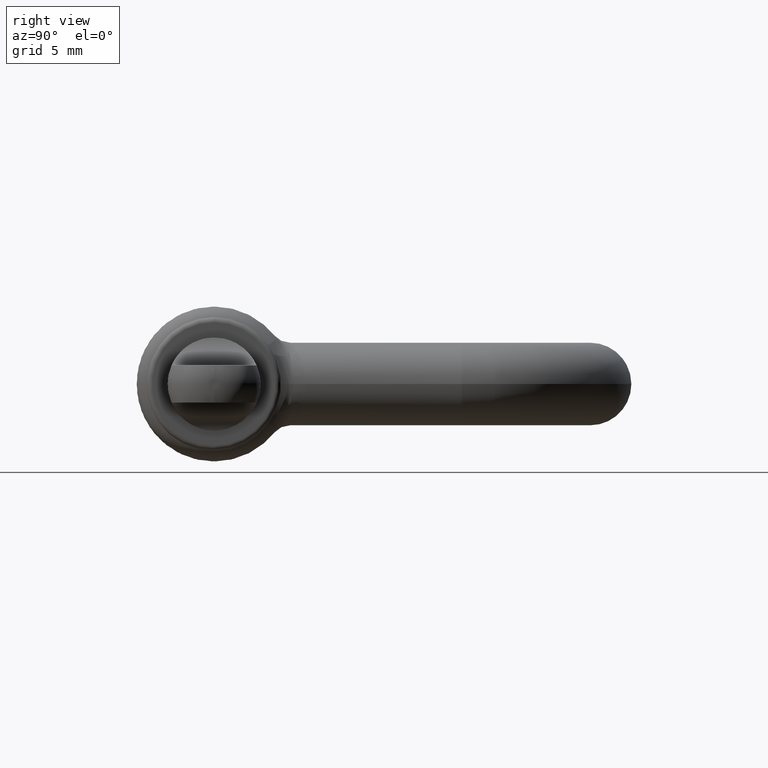
[diagram: clean part render]
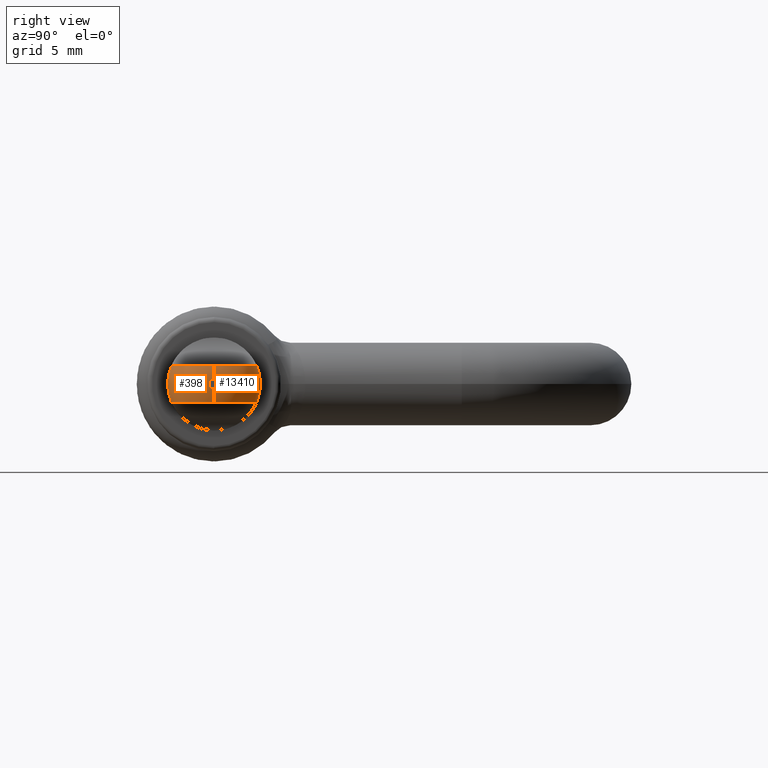
[diagram: same view with one multi-face feature highlighted, each face labeled with its STEP entity id]
A machine part, right view. The highlighted faces form ONE feature: a constant-radius fillet chain: 2 tangent blend faces with common blend radius 2 mm. The faces share edges in the B-rep.
Their STEP definitions:
[1] entity #13410 (Torus):
#85 = VERTEX_POINT ( 'NONE', #4303 ) ;
#395 = CARTESIAN_POINT ( 'NONE',  ( 12.49999999999999800, 2.062159062730128100, 0.8999999999999993600 ) ) ;
#441 = CARTESIAN_POINT ( 'NONE',  ( 14.39142803193777300, 1.318156330852648200E-016, 0.8999999999999993600 ) ) ;
#589 = CARTESIAN_POINT ( 'NONE',  ( 14.38186697470523400, 0.2600725015327278200, -0.9000000000000005800 ) ) ;
#858 = CARTESIAN_POINT ( 'NONE',  ( 14.49999999999999800, 0.0000000000000000000, 0.0000000000000000000 ) ) ;
#951 = VERTEX_POINT ( 'NONE', #6091 ) ;
#965 = ORIENTED_EDGE ( 'NONE', *, *, #3325, .F. ) ;
#1438 = CIRCLE ( 'NONE', #9480, 0.2499999999999997800 ) ;
#1704 = CARTESIAN_POINT ( 'NONE',  ( 14.04342145953064100, 1.235191014786084500, -0.9000000000000005800 ) ) ;
#1714 = AXIS2_PLACEMENT_3D ( 'NONE', #5116, #2980, #5067 ) ;
#1754 = CARTESIAN_POINT ( 'NONE',  ( 14.31108299715055500, 0.6450014362490766900, -0.9000000000000004700 ) ) ;
#1905 = EDGE_CURVE ( 'NONE', #6522, #6658, #8430, .T. ) ;
#1991 = CARTESIAN_POINT ( 'NONE',  ( 12.49999999999999800, 0.0000000000000000000, -0.2499999999999997800 ) ) ;
#2583 = DIRECTION ( 'NONE',  ( 0.0000000000000000000, 1.224646799147353200E-016, 1.000000000000000000 ) ) ;
#2614 = AXIS2_PLACEMENT_3D ( 'NONE', #13413, #11138, #12286 ) ;
#2659 = EDGE_LOOP ( 'NONE', ( #4043, #7740, #6089, #965, #7195, #3487 ) ) ;
#2866 = CARTESIAN_POINT ( 'NONE',  ( 14.39142803193777300, -2.159742164526316100E-017, -0.9000000000000005800 ) ) ;
#2980 = DIRECTION ( 'NONE',  ( -1.000000000000000000, -0.0000000000000000000, -0.0000000000000000000 ) ) ;
#3119 = CIRCLE ( 'NONE', #12727, 2.000000000000000000 ) ;
#3325 = EDGE_CURVE ( 'NONE', #5490, #85, #3119, .T. ) ;
#3487 = ORIENTED_EDGE ( 'NONE', *, *, #10201, .F. ) ;
#3524 = CARTESIAN_POINT ( 'NONE',  ( 13.96859623279339700, 1.339572147097799000, 0.8999999999999993600 ) ) ;
#3570 = CARTESIAN_POINT ( 'NONE',  ( 13.69859056821591100, 1.623456874645490900, 0.8999999999999993600 ) ) ;
#3674 = EDGE_CURVE ( 'NONE', #6522, #951, #12250, .T. ) ;
#3699 = FACE_OUTER_BOUND ( 'NONE', #2659, .T. ) ;
#3727 = CARTESIAN_POINT ( 'NONE',  ( 14.22686444273517400, 0.8909635116540949300, -0.9000000000000005800 ) ) ;
#3929 = CARTESIAN_POINT ( 'NONE',  ( 13.48762013072488100, 1.779320311658497000, -0.9000000000000005800 ) ) ;
#4043 = ORIENTED_EDGE ( 'NONE', *, *, #3674, .F. ) ;
#4303 = CARTESIAN_POINT ( 'NONE',  ( 14.49999999999999800, 0.0000000000000000000, -0.2499999999999997800 ) ) ;
#4646 = CARTESIAN_POINT ( 'NONE',  ( 13.49025200080579300, 1.777564726052290200, 0.8999999999999992500 ) ) ;
#5049 = CARTESIAN_POINT ( 'NONE',  ( 14.39142803193777300, 1.318156330852648200E-016, 0.8999999999999993600 ) ) ;
#5067 = DIRECTION ( 'NONE',  ( 0.0000000000000000000, -2.664535259100375300E-015, -1.000000000000000000 ) ) ;
#5116 = CARTESIAN_POINT ( 'NONE',  ( 12.49999999999999800, 0.0000000000000000000, 0.0000000000000000000 ) ) ;
#5407 = CIRCLE ( 'NONE', #1714, 2.250000000000000000 ) ;
#5490 = VERTEX_POINT ( 'NONE', #12807 ) ;
#5727 = DIRECTION ( 'NONE',  ( 0.0000000000000000000, 1.000000000000000000, -1.224646799147353200E-016 ) ) ;
#5796 = CARTESIAN_POINT ( 'NONE',  ( 13.37610694705466900, 1.844751467029783100, 0.8999999999999993600 ) ) ;
#5886 = EDGE_CURVE ( 'NONE', #85, #6658, #1438, .T. ) ;
#6089 = ORIENTED_EDGE ( 'NONE', *, *, #5886, .F. ) ;
#6091 = CARTESIAN_POINT ( 'NONE',  ( 12.49999999999999800, 2.062159062730128100, 0.8999999999999993600 ) ) ;
#6522 = VERTEX_POINT ( 'NONE', #5049 ) ;
#6658 = VERTEX_POINT ( 'NONE', #8458 ) ;
#6678 = CARTESIAN_POINT ( 'NONE',  ( 14.22788316150852400, 0.8885347635341457300, 0.8999999999999995800 ) ) ;
#6726 = CARTESIAN_POINT ( 'NONE',  ( 14.39142803193777100, 0.2612257021649463400, 0.8999999999999992500 ) ) ;
#6817 = CARTESIAN_POINT ( 'NONE',  ( 13.13896607642178800, 1.952157793391350100, 0.8999999999999992500 ) ) ;
#6932 = CARTESIAN_POINT ( 'NONE',  ( 14.34197647336057100, 0.5167581848571966000, -0.9000000000000004700 ) ) ;
#7061 = EDGE_CURVE ( 'NONE', #7299, #5490, #10899, .T. ) ;
#7170 = CARTESIAN_POINT ( 'NONE',  ( 12.49999999999999800, 2.062159062730127600, -0.9000000000000005800 ) ) ;
#7195 = ORIENTED_EDGE ( 'NONE', *, *, #7061, .F. ) ;
#7299 = VERTEX_POINT ( 'NONE', #7170 ) ;
#7740 = ORIENTED_EDGE ( 'NONE', *, *, #1905, .T. ) ;
#7839 = CARTESIAN_POINT ( 'NONE',  ( 14.35395432953614800, 0.5186835465555520400, 0.8999999999999992500 ) ) ;
#7990 = CARTESIAN_POINT ( 'NONE',  ( 14.39142803193777500, 0.1305700812349618600, -0.9000000000000005800 ) ) ;
#8091 = CARTESIAN_POINT ( 'NONE',  ( 12.76026137309460200, 2.048206051750345300, -0.9000000000000006900 ) ) ;
#8140 = CARTESIAN_POINT ( 'NONE',  ( 13.13927028022663600, 1.952024560887731800, -0.9000000000000005800 ) ) ;
#8263 = DIRECTION ( 'NONE',  ( 0.0000000000000000000, 0.0000000000000000000, -1.000000000000000000 ) ) ;
#8430 = CIRCLE ( 'NONE', #11390, 2.000000000000000000 ) ;
#8458 = CARTESIAN_POINT ( 'NONE',  ( 14.49999999999999800, 1.530808498934191100E-016, 0.2499999999999997800 ) ) ;
#8999 = CARTESIAN_POINT ( 'NONE',  ( 13.96660777000959000, 1.341949478768059300, -0.9000000000000005800 ) ) ;
#9179 = CARTESIAN_POINT ( 'NONE',  ( 14.17370158134144400, 1.009161298887868400, -0.9000000000000004700 ) ) ;
#9480 = AXIS2_PLACEMENT_3D ( 'NONE', #858, #10404, #8263 ) ;
#9809 = CARTESIAN_POINT ( 'NONE',  ( 14.04441684555086300, 1.233602730185269200, 0.8999999999999992500 ) ) ;
#9897 = CARTESIAN_POINT ( 'NONE',  ( 13.79433584521242800, 1.535953169192862500, 0.8999999999999992500 ) ) ;
#10049 = CARTESIAN_POINT ( 'NONE',  ( 13.69773061928580500, 1.624281031651025900, -0.9000000000000006900 ) ) ;
#10142 = CARTESIAN_POINT ( 'NONE',  ( 13.79455932335085300, 1.535563461947230300, -0.9000000000000005800 ) ) ;
#10196 = CARTESIAN_POINT ( 'NONE',  ( 12.63132215400232100, 2.062159062730128100, -0.9000000000000004700 ) ) ;
#10201 = EDGE_CURVE ( 'NONE', #951, #7299, #5407, .T. ) ;
#10381 = DIRECTION ( 'NONE',  ( 0.0000000000000000000, 0.0000000000000000000, -1.000000000000000000 ) ) ;
#10404 = DIRECTION ( 'NONE',  ( 1.000000000000000000, 0.0000000000000000000, 0.0000000000000000000 ) ) ;
#10894 = CARTESIAN_POINT ( 'NONE',  ( 13.01594465396227400, 1.992903311938197800, 0.8999999999999993600 ) ) ;
#10899 = B_SPLINE_CURVE_WITH_KNOTS ( 'NONE', 3,
 ( #13333, #10196, #8091, #13236, #8140, #13282, #3929, #10049, #10142, #8999, #1704, #9179, #3727, #1754, #6932, #589, #7990, #2866 ),
 .UNSPECIFIED., .F., .F.,
 ( 4, 2, 2, 2, 2, 2, 2, 2, 4 ),
 ( 0.0000000000000000000, 0.0003883437970287137300, 0.0007766875940574274600, 0.001165031391086141500, 0.001553375188114855600, 0.001941718985143569600, 0.002330062782172283500, 0.002718406579200998000, 0.003106750376229712000 ),
 .UNSPECIFIED. ) ;
#11138 = DIRECTION ( 'NONE',  ( 1.000000000000000000, 0.0000000000000000000, 0.0000000000000000000 ) ) ;
#11390 = AXIS2_PLACEMENT_3D ( 'NONE', #13090, #5727, #2583 ) ;
#11569 = DIRECTION ( 'NONE',  ( 0.0000000000000000000, -1.000000000000000000, 0.0000000000000000000 ) ) ;
#12099 = TOROIDAL_SURFACE ( 'NONE', #2614, 0.2499999999999997800, 2.000000000000000000 ) ;
#12250 = B_SPLINE_CURVE_WITH_KNOTS ( 'NONE', 3,
 ( #441, #6726, #7839, #6678, #13070, #9809, #3524, #9897, #3570, #4646, #5796, #6817, #10894, #13027, #12973, #395 ),
 .UNSPECIFIED., .F., .F.,
 ( 4, 2, 2, 2, 2, 2, 2, 4 ),
 ( 0.003106750376229714200, 0.003883692383929591900, 0.004272163387779530500, 0.004660634391629469600, 0.005049105395479408700, 0.005437576399329346900, 0.005826047403179286000, 0.006214518407029225000 ),
 .UNSPECIFIED. ) ;
#12286 = DIRECTION ( 'NONE',  ( 0.0000000000000000000, 0.0000000000000000000, -1.000000000000000000 ) ) ;
#12727 = AXIS2_PLACEMENT_3D ( 'NONE', #1991, #11569, #10381 ) ;
#12807 = CARTESIAN_POINT ( 'NONE',  ( 14.39142803193777300, -2.159742164526316100E-017, -0.9000000000000005800 ) ) ;
#12973 = CARTESIAN_POINT ( 'NONE',  ( 12.62963962496387000, 2.062159062730128100, 0.8999999999999993600 ) ) ;
#13027 = CARTESIAN_POINT ( 'NONE',  ( 12.76089719007095100, 2.048180242148088100, 0.8999999999999992500 ) ) ;
#13070 = CARTESIAN_POINT ( 'NONE',  ( 14.17375390542727900, 1.008930729768837500, 0.8999999999999993600 ) ) ;
#13090 = CARTESIAN_POINT ( 'NONE',  ( 12.49999999999999800, 3.061616997868380600E-017, 0.2499999999999997800 ) ) ;
#13236 = CARTESIAN_POINT ( 'NONE',  ( 13.01356779919568900, 1.993529120299524200, -0.9000000000000005800 ) ) ;
#13282 = CARTESIAN_POINT ( 'NONE',  ( 13.37590985879739400, 1.844836182480338800, -0.9000000000000005800 ) ) ;
#13333 = CARTESIAN_POINT ( 'NONE',  ( 12.49999999999999800, 2.062159062730127600, -0.9000000000000005800 ) ) ;
#13410 = ADVANCED_FACE ( 'NONE', ( #3699 ), #12099, .T. ) ;
#13413 = CARTESIAN_POINT ( 'NONE',  ( 12.49999999999999800, 0.0000000000000000000, 0.0000000000000000000 ) ) ;
[2] entity #398 (Torus):
#29 = FACE_OUTER_BOUND ( 'NONE', #5576, .T. ) ;
#72 = CARTESIAN_POINT ( 'NONE',  ( 14.31108299715056000, -0.6450014362490769100, 0.8999999999999992500 ) ) ;
#85 = VERTEX_POINT ( 'NONE', #4303 ) ;
#181 = CARTESIAN_POINT ( 'NONE',  ( 14.22788316150852400, -0.8885347635341451800, -0.9000000000000008000 ) ) ;
#268 = CARTESIAN_POINT ( 'NONE',  ( 13.69859056821591100, -1.623456874645489800, -0.9000000000000005800 ) ) ;
#357 = CARTESIAN_POINT ( 'NONE',  ( 13.49025200080579300, -1.777564726052289800, -0.9000000000000005800 ) ) ;
#398 = ADVANCED_FACE ( 'NONE', ( #29 ), #13044, .T. ) ;
#443 = VERTEX_POINT ( 'NONE', #6939 ) ;
#599 = AXIS2_PLACEMENT_3D ( 'NONE', #1404, #1225, #7735 ) ;
#897 = CARTESIAN_POINT ( 'NONE',  ( 14.39142803193777500, -0.1305700812349618000, 0.8999999999999993600 ) ) ;
#1093 = EDGE_CURVE ( 'NONE', #443, #6522, #4345, .T. ) ;
#1225 = DIRECTION ( 'NONE',  ( -1.000000000000000000, -0.0000000000000000000, -0.0000000000000000000 ) ) ;
#1240 = CARTESIAN_POINT ( 'NONE',  ( 14.04441684555086500, -1.233602730185267900, -0.9000000000000005800 ) ) ;
#1290 = CARTESIAN_POINT ( 'NONE',  ( 14.39142803193777300, -2.159742164526316100E-017, -0.9000000000000005800 ) ) ;
#1404 = CARTESIAN_POINT ( 'NONE',  ( 12.49999999999999800, 0.0000000000000000000, 0.0000000000000000000 ) ) ;
#1905 = EDGE_CURVE ( 'NONE', #6522, #6658, #8430, .T. ) ;
#1991 = CARTESIAN_POINT ( 'NONE',  ( 12.49999999999999800, 0.0000000000000000000, -0.2499999999999997800 ) ) ;
#2104 = CARTESIAN_POINT ( 'NONE',  ( 14.38186697470523400, -0.2600725015327273700, 0.8999999999999992500 ) ) ;
#2186 = EDGE_CURVE ( 'NONE', #11601, #443, #4616, .T. ) ;
#2311 = CARTESIAN_POINT ( 'NONE',  ( 13.13896607642178800, -1.952157793391349600, -0.9000000000000005800 ) ) ;
#2446 = CARTESIAN_POINT ( 'NONE',  ( 14.39142803193777100, -0.2612257021649461700, -0.9000000000000004700 ) ) ;
#2469 = ORIENTED_EDGE ( 'NONE', *, *, #2186, .F. ) ;
#2583 = DIRECTION ( 'NONE',  ( 0.0000000000000000000, 1.224646799147353200E-016, 1.000000000000000000 ) ) ;
#2951 = CIRCLE ( 'NONE', #12804, 0.2499999999999997800 ) ;
#3027 = CARTESIAN_POINT ( 'NONE',  ( 12.49999999999999800, -2.062159062730128100, 0.9000000000000000200 ) ) ;
#3119 = CIRCLE ( 'NONE', #12727, 2.000000000000000000 ) ;
#3144 = EDGE_CURVE ( 'NONE', #6658, #85, #2951, .T. ) ;
#3211 = CARTESIAN_POINT ( 'NONE',  ( 13.37590985879739100, -1.844836182480339000, 0.8999999999999992500 ) ) ;
#3325 = EDGE_CURVE ( 'NONE', #5490, #85, #3119, .T. ) ;
#3357 = CARTESIAN_POINT ( 'NONE',  ( 12.49999999999999800, -2.062159062730127600, -0.9000000000000005800 ) ) ;
#3401 = CARTESIAN_POINT ( 'NONE',  ( 14.17375390542727900, -1.008930729768836600, -0.9000000000000005800 ) ) ;
#3408 = ORIENTED_EDGE ( 'NONE', *, *, #1093, .F. ) ;
#3445 = CARTESIAN_POINT ( 'NONE',  ( 14.35395432953614800, -0.5186835465555519300, -0.9000000000000004700 ) ) ;
#4005 = ORIENTED_EDGE ( 'NONE', *, *, #13203, .F. ) ;
#4097 = CARTESIAN_POINT ( 'NONE',  ( 14.17370158134144200, -1.009161298887868400, 0.8999999999999992500 ) ) ;
#4196 = ORIENTED_EDGE ( 'NONE', *, *, #1905, .F. ) ;
#4303 = CARTESIAN_POINT ( 'NONE',  ( 14.49999999999999800, 0.0000000000000000000, -0.2499999999999997800 ) ) ;
#4345 = B_SPLINE_CURVE_WITH_KNOTS ( 'NONE', 3,
 ( #3027, #7339, #8487, #9533, #12610, #3211, #11590, #11501, #6407, #10406, #5210, #4097, #5258, #72, #11549, #2104, #897, #5302 ),
 .UNSPECIFIED., .F., .F.,
 ( 4, 2, 2, 2, 2, 2, 2, 2, 4 ),
 ( 0.0000000000000000000, 0.0003883437970287142700, 0.0007766875940574285500, 0.001165031391086142800, 0.001553375188114857100, 0.001941718985143571400, 0.002330062782172285600, 0.002718406579201000100, 0.003106750376229714200 ),
 .UNSPECIFIED. ) ;
#4616 = CIRCLE ( 'NONE', #599, 2.250000000000000000 ) ;
#4679 = DIRECTION ( 'NONE',  ( 0.0000000000000000000, 0.0000000000000000000, -1.000000000000000000 ) ) ;
#4818 = B_SPLINE_CURVE_WITH_KNOTS ( 'NONE', 3,
 ( #1290, #2446, #3445, #181, #3401, #1240, #8640, #5487, #268, #357, #9815, #2311, #6552, #11916, #9685, #3357 ),
 .UNSPECIFIED., .F., .F.,
 ( 4, 2, 2, 2, 2, 2, 2, 4 ),
 ( 0.003106750376229712000, 0.003883692383929588900, 0.004272163387779527100, 0.004660634391629465300, 0.005049105395479404300, 0.005437576399329341700, 0.005826047403179280800, 0.006214518407029219000 ),
 .UNSPECIFIED. ) ;
#5049 = CARTESIAN_POINT ( 'NONE',  ( 14.39142803193777300, 1.318156330852648200E-016, 0.8999999999999993600 ) ) ;
#5210 = CARTESIAN_POINT ( 'NONE',  ( 14.04342145953064100, -1.235191014786085000, 0.8999999999999993600 ) ) ;
#5258 = CARTESIAN_POINT ( 'NONE',  ( 14.22686444273517600, -0.8909635116540949300, 0.8999999999999993600 ) ) ;
#5302 = CARTESIAN_POINT ( 'NONE',  ( 14.39142803193777300, 1.318156330852648200E-016, 0.8999999999999993600 ) ) ;
#5487 = CARTESIAN_POINT ( 'NONE',  ( 13.79433584521242800, -1.535953169192860700, -0.9000000000000005800 ) ) ;
#5490 = VERTEX_POINT ( 'NONE', #12807 ) ;
#5576 = EDGE_LOOP ( 'NONE', ( #4196, #3408, #2469, #4005, #13325, #7157 ) ) ;
#5602 = DIRECTION ( 'NONE',  ( 1.000000000000000000, 0.0000000000000000000, 0.0000000000000000000 ) ) ;
#5727 = DIRECTION ( 'NONE',  ( 0.0000000000000000000, 1.000000000000000000, -1.224646799147353200E-016 ) ) ;
#6407 = CARTESIAN_POINT ( 'NONE',  ( 13.79455932335085500, -1.535563461947229800, 0.8999999999999993600 ) ) ;
#6522 = VERTEX_POINT ( 'NONE', #5049 ) ;
#6552 = CARTESIAN_POINT ( 'NONE',  ( 13.01594465396227400, -1.992903311938197400, -0.9000000000000005800 ) ) ;
#6658 = VERTEX_POINT ( 'NONE', #8458 ) ;
#6939 = CARTESIAN_POINT ( 'NONE',  ( 12.49999999999999800, -2.062159062730128100, 0.9000000000000000200 ) ) ;
#7157 = ORIENTED_EDGE ( 'NONE', *, *, #3144, .F. ) ;
#7178 = CARTESIAN_POINT ( 'NONE',  ( 12.49999999999999800, -2.062159062730127600, -0.9000000000000005800 ) ) ;
#7339 = CARTESIAN_POINT ( 'NONE',  ( 12.63132215400232100, -2.062159062730128100, 0.8999999999999994700 ) ) ;
#7340 = AXIS2_PLACEMENT_3D ( 'NONE', #11895, #5602, #9710 ) ;
#7735 = DIRECTION ( 'NONE',  ( 0.0000000000000000000, 0.0000000000000000000, -1.000000000000000000 ) ) ;
#7959 = DIRECTION ( 'NONE',  ( 1.000000000000000000, 0.0000000000000000000, 0.0000000000000000000 ) ) ;
#8430 = CIRCLE ( 'NONE', #11390, 2.000000000000000000 ) ;
#8458 = CARTESIAN_POINT ( 'NONE',  ( 14.49999999999999800, 1.530808498934191100E-016, 0.2499999999999997800 ) ) ;
#8487 = CARTESIAN_POINT ( 'NONE',  ( 12.76026137309460000, -2.048206051750346200, 0.8999999999999994700 ) ) ;
#8640 = CARTESIAN_POINT ( 'NONE',  ( 13.96859623279340000, -1.339572147097796800, -0.9000000000000005800 ) ) ;
#9533 = CARTESIAN_POINT ( 'NONE',  ( 13.01356779919568800, -1.993529120299525100, 0.8999999999999992500 ) ) ;
#9685 = CARTESIAN_POINT ( 'NONE',  ( 12.62963962496387000, -2.062159062730128100, -0.9000000000000005800 ) ) ;
#9710 = DIRECTION ( 'NONE',  ( 0.0000000000000000000, 0.0000000000000000000, -1.000000000000000000 ) ) ;
#9815 = CARTESIAN_POINT ( 'NONE',  ( 13.37610694705466900, -1.844751467029782000, -0.9000000000000005800 ) ) ;
#10012 = CARTESIAN_POINT ( 'NONE',  ( 14.49999999999999800, 0.0000000000000000000, 0.0000000000000000000 ) ) ;
#10381 = DIRECTION ( 'NONE',  ( 0.0000000000000000000, 0.0000000000000000000, -1.000000000000000000 ) ) ;
#10406 = CARTESIAN_POINT ( 'NONE',  ( 13.96660777000959000, -1.341949478768059000, 0.8999999999999992500 ) ) ;
#11390 = AXIS2_PLACEMENT_3D ( 'NONE', #13090, #5727, #2583 ) ;
#11501 = CARTESIAN_POINT ( 'NONE',  ( 13.69773061928579600, -1.624281031651026600, 0.8999999999999992500 ) ) ;
#11549 = CARTESIAN_POINT ( 'NONE',  ( 14.34197647336057100, -0.5167581848571960500, 0.8999999999999993600 ) ) ;
#11569 = DIRECTION ( 'NONE',  ( 0.0000000000000000000, -1.000000000000000000, 0.0000000000000000000 ) ) ;
#11590 = CARTESIAN_POINT ( 'NONE',  ( 13.48762013072488100, -1.779320311658497500, 0.8999999999999993600 ) ) ;
#11601 = VERTEX_POINT ( 'NONE', #7178 ) ;
#11895 = CARTESIAN_POINT ( 'NONE',  ( 12.49999999999999800, 0.0000000000000000000, 0.0000000000000000000 ) ) ;
#11916 = CARTESIAN_POINT ( 'NONE',  ( 12.76089719007095100, -2.048180242148087700, -0.9000000000000005800 ) ) ;
#12610 = CARTESIAN_POINT ( 'NONE',  ( 13.13927028022663800, -1.952024560887733100, 0.8999999999999993600 ) ) ;
#12727 = AXIS2_PLACEMENT_3D ( 'NONE', #1991, #11569, #10381 ) ;
#12804 = AXIS2_PLACEMENT_3D ( 'NONE', #10012, #7959, #4679 ) ;
#12807 = CARTESIAN_POINT ( 'NONE',  ( 14.39142803193777300, -2.159742164526316100E-017, -0.9000000000000005800 ) ) ;
#13044 = TOROIDAL_SURFACE ( 'NONE', #7340, 0.2499999999999997800, 2.000000000000000000 ) ;
#13090 = CARTESIAN_POINT ( 'NONE',  ( 12.49999999999999800, 3.061616997868380600E-017, 0.2499999999999997800 ) ) ;
#13203 = EDGE_CURVE ( 'NONE', #5490, #11601, #4818, .T. ) ;
#13325 = ORIENTED_EDGE ( 'NONE', *, *, #3325, .T. ) ;